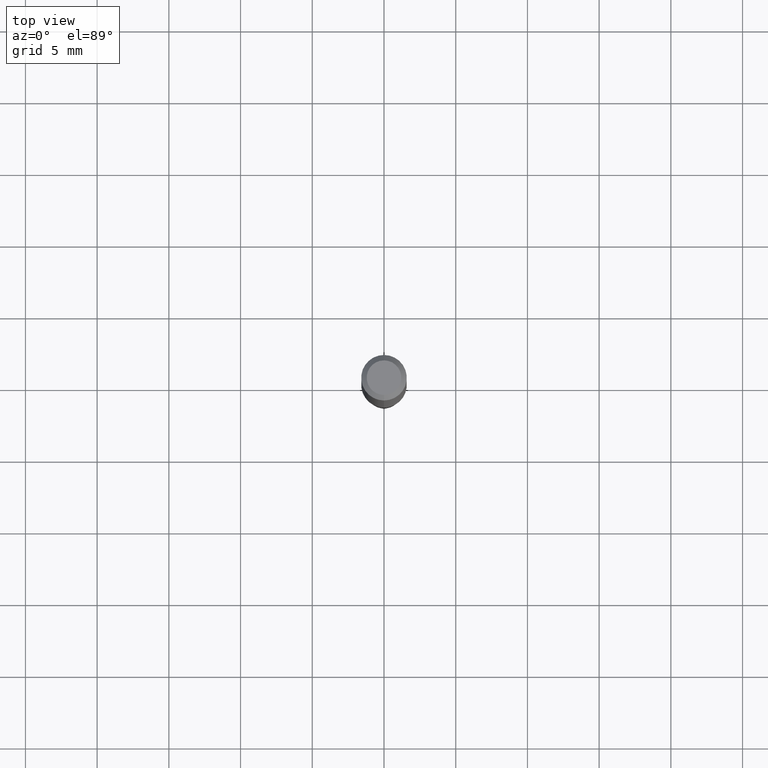
[diagram: clean part render]
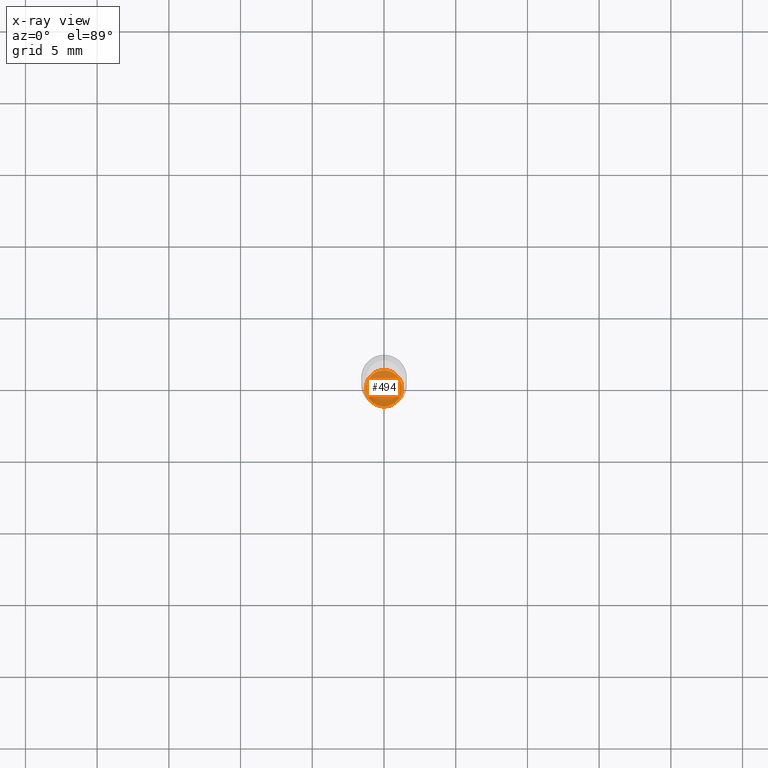
[diagram: x-ray — body ghosted, one internal face saturated and labeled with its STEP entity id]
A machine part, top view, then the same camera in x-ray: the body is ghosted and one INTERNAL B-rep face — a face not visible from any outside direction — is saturated and labeled: STEP entity #494.
In plain terms, the highlighted planar face has unit normal (-0, 0, 1).
Its self-contained STEP definition (entity closure, byte-faithful):
#23 = EDGE_CURVE ( 'NONE', #275, #148, #94, .T. ) ;
#37 = DIRECTION ( 'NONE',  ( -6.982962677686265922E-15, -1.000000000000000000, 3.491578024040387972E-15 ) ) ;
#44 = ORIENTED_EDGE ( 'NONE', *, *, #23, .F. ) ;
#46 = CARTESIAN_POINT ( 'NONE',  ( 4.157182195163681338E-29, -5.935682640868658685E-15, -1.699999999999999956 ) ) ;
#54 = CIRCLE ( 'NONE', #91, 0.05000000000000000278 ) ;
#78 = FACE_OUTER_BOUND ( 'NONE', #504, .T. ) ;
#91 = AXIS2_PLACEMENT_3D ( 'NONE', #46, #379, #123 ) ;
#94 = CIRCLE ( 'NONE', #516, 0.05000000000000000278 ) ;
#114 = DIRECTION ( 'NONE',  ( -2.445401291272753514E-29, 3.491578024040387972E-15, 1.000000000000000000 ) ) ;
#123 = DIRECTION ( 'NONE',  ( -6.982962677686265133E-15, -1.000000000000000000, 5.463695987328526437E-15 ) ) ;
#138 = DIRECTION ( 'NONE',  ( -6.982962677686265133E-15, -1.000000000000000000, 5.463695987328526437E-15 ) ) ;
#148 = VERTEX_POINT ( 'NONE', #355 ) ;
#156 = AXIS2_PLACEMENT_3D ( 'NONE', #208, #114, #37 ) ;
#185 = CARTESIAN_POINT ( 'NONE',  ( 4.157182195163681338E-29, -5.935682640868658685E-15, -1.699999999999999956 ) ) ;
#208 = CARTESIAN_POINT ( 'NONE',  ( 3.491481338843548493E-16, 0.04999999999999407002, -1.700000000000000178 ) ) ;
#233 = EDGE_CURVE ( 'NONE', #148, #275, #54, .T. ) ;
#275 = VERTEX_POINT ( 'NONE', #332 ) ;
#332 = CARTESIAN_POINT ( 'NONE',  ( -3.491481338842715752E-16, -0.05000000000000592165, -1.699999999999999734 ) ) ;
#349 = DIRECTION ( 'NONE',  ( -2.445401291272753794E-29, 3.491578024040387972E-15, 1.000000000000000000 ) ) ;
#353 = ORIENTED_EDGE ( 'NONE', *, *, #233, .F. ) ;
#355 = CARTESIAN_POINT ( 'NONE',  ( 3.552713678800914786E-16, 0.04999999999999404227, -1.700000000000000178 ) ) ;
#379 = DIRECTION ( 'NONE',  ( -2.445401291272753794E-29, 3.491578024040387972E-15, 1.000000000000000000 ) ) ;
#448 = PLANE ( 'NONE',  #156 ) ;
#494 = ADVANCED_FACE ( 'NONE', ( #78 ), #448, .F. ) ;
#504 = EDGE_LOOP ( 'NONE', ( #44, #353 ) ) ;
#516 = AXIS2_PLACEMENT_3D ( 'NONE', #185, #349, #138 ) ;